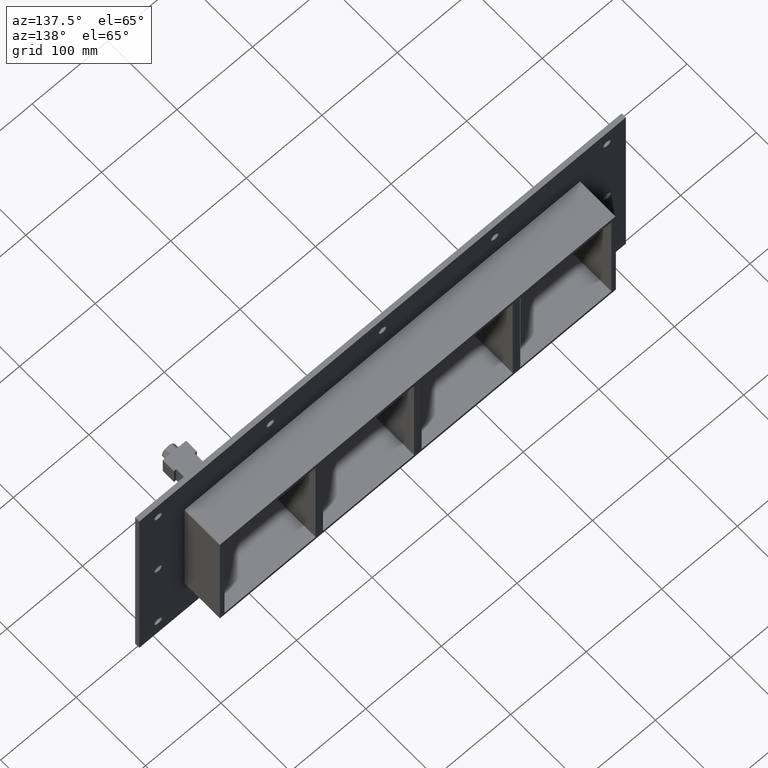
[diagram: clean part render]
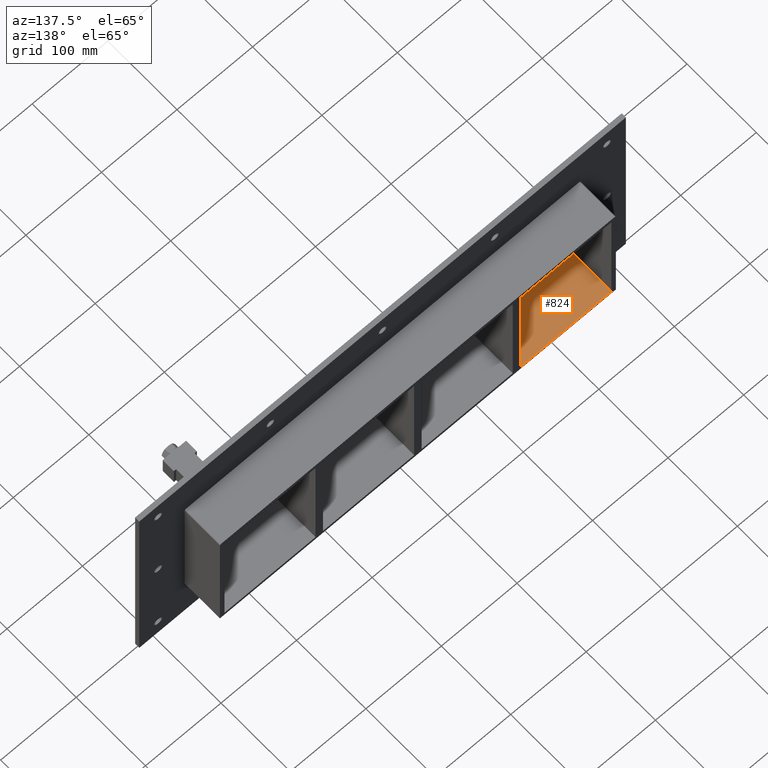
[diagram: same view with one face highlighted and labeled with its STEP entity id]
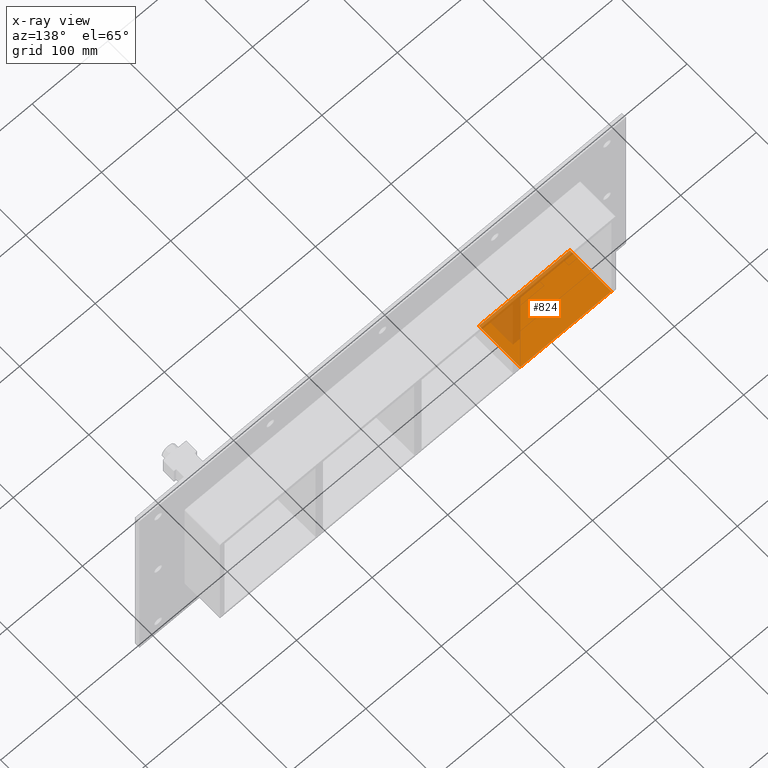
[diagram: x-ray of the same camera — body ghosted, the highlighted face saturated]
A machine part, auxiliary view. The second image highlights one B-rep face of the part: STEP entity #824.
The next image is the same camera in x-ray: the body ghosted, the highlighted face saturated — about 20% of this face is hidden behind the body in this view.
In plain terms, the highlighted planar face has unit normal (0, 0, -1).
Its self-contained STEP definition (entity closure, byte-faithful):
#737=CARTESIAN_POINT('',(-135.50000000000034,-3.0,-79.749999999999972));
#738=VERTEX_POINT('',#737);
#755=CARTESIAN_POINT('',(-135.50000000000034,57.0,-79.749999999999972));
#756=VERTEX_POINT('',#755);
#763=CARTESIAN_POINT('',(-135.50000000000034,-3.0,-79.749999999999943));
#764=DIRECTION('',(0.0,1.0,0.0));
#765=VECTOR('',#764,60.000000000000007);
#766=LINE('',#763,#765);
#767=EDGE_CURVE('',#738,#756,#766,.T.);
#794=CARTESIAN_POINT('',(256.0,0.0,-79.749999999999943));
#795=DIRECTION('',(0.0,0.0,-1.0));
#796=DIRECTION('',(-1.0,0.0,0.0));
#797=AXIS2_PLACEMENT_3D('',#794,#795,#796);
#798=PLANE('',#797);
#799=ORIENTED_EDGE('',*,*,#767,.T.);
#800=CARTESIAN_POINT('',(-256.0,57.0,-79.749999999999972));
#801=VERTEX_POINT('',#800);
#802=CARTESIAN_POINT('',(-256.00000000000006,57.0,-79.749999999999943));
#803=DIRECTION('',(1.0,0.0,0.0));
#804=VECTOR('',#803,120.49999999999972);
#805=LINE('',#802,#804);
#806=EDGE_CURVE('',#801,#756,#805,.T.);
#807=ORIENTED_EDGE('',*,*,#806,.F.);
#808=CARTESIAN_POINT('',(-256.0,-3.0,-79.749999999999972));
#809=VERTEX_POINT('',#808);
#810=CARTESIAN_POINT('',(-256.0,-3.0,-79.749999999999972));
#811=DIRECTION('',(0.0,1.0,0.0));
#812=VECTOR('',#811,60.0);
#813=LINE('',#810,#812);
#814=EDGE_CURVE('',#809,#801,#813,.T.);
#815=ORIENTED_EDGE('',*,*,#814,.F.);
#816=CARTESIAN_POINT('',(-135.50000000000034,-3.0,-79.749999999999943));
#817=DIRECTION('',(-1.0,0.0,0.0));
#818=VECTOR('',#817,120.49999999999972);
#819=LINE('',#816,#818);
#820=EDGE_CURVE('',#738,#809,#819,.T.);
#821=ORIENTED_EDGE('',*,*,#820,.F.);
#822=EDGE_LOOP('',(#799,#807,#815,#821));
#823=FACE_OUTER_BOUND('',#822,.T.);
#824=ADVANCED_FACE('',(#823),#798,.F.);